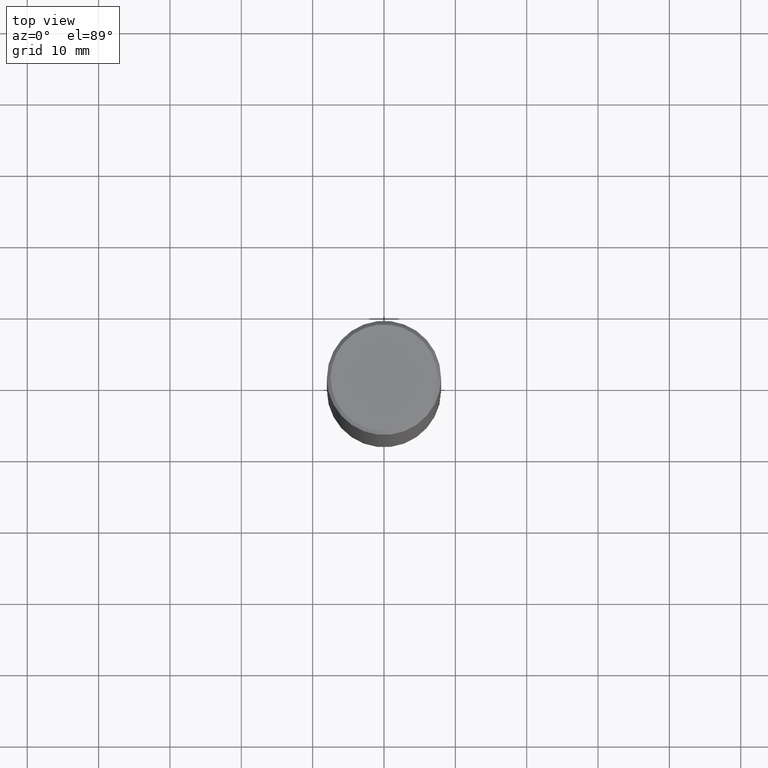
[diagram: clean part render]
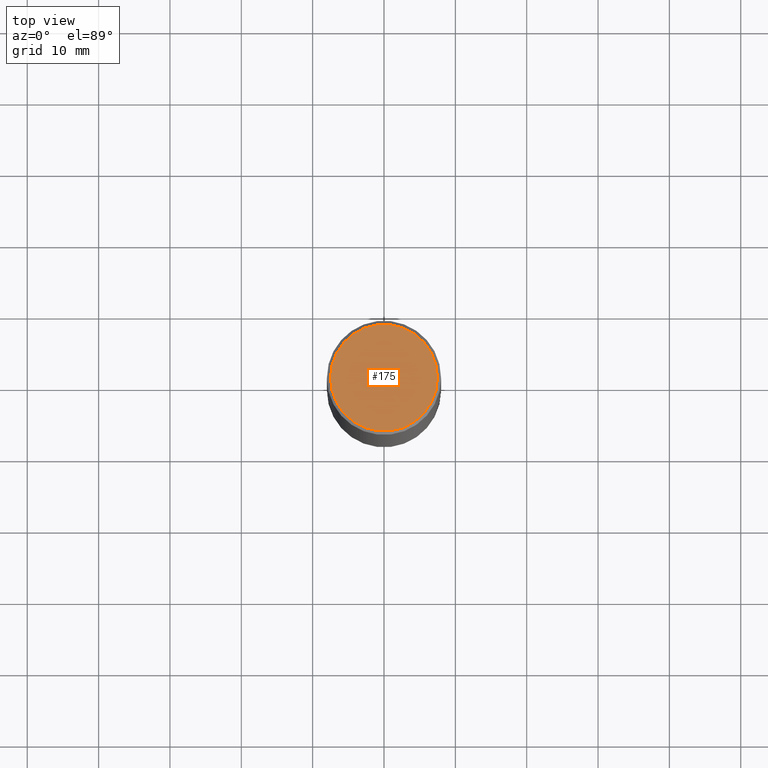
[diagram: same view with one face highlighted and labeled with its STEP entity id]
A machine part, top view. The second image highlights one B-rep face of the part: STEP entity #175.
In plain terms, the highlighted planar face has unit normal (0, -0, -1).
Its self-contained STEP definition (entity closure, byte-faithful):
#33 = DIRECTION ( 'NONE',  ( 1.000000000000000000, -6.982962677686267499E-15, 4.876053491004739391E-29 ) ) ;
#40 = DIRECTION ( 'NONE',  ( -2.445468806185136597E-29, 3.491481338843145583E-15, 1.000000000000000000 ) ) ;
#53 = AXIS2_PLACEMENT_3D ( 'NONE', #131, #155, #33 ) ;
#81 = CARTESIAN_POINT ( 'NONE',  ( -2.087702828670439639E-46, 2.980686340760894400E-32, 8.537024980200822558E-18 ) ) ;
#85 = DIRECTION ( 'NONE',  ( -1.000000000000000000, 6.982962677686265922E-15, -4.876176775795935793E-29 ) ) ;
#118 = EDGE_LOOP ( 'NONE', ( #340, #246 ) ) ;
#122 = DIRECTION ( 'NONE',  ( 2.438088387897960049E-29, -3.491481338843145188E-15, -1.000000000000000000 ) ) ;
#131 = CARTESIAN_POINT ( 'NONE',  ( -2.087702828670439639E-46, 2.980686340760894400E-32, 8.537024980200822558E-18 ) ) ;
#149 = VERTEX_POINT ( 'NONE', #171 ) ;
#155 = DIRECTION ( 'NONE',  ( -2.445468806185136597E-29, 3.491481338843145583E-15, 1.000000000000000000 ) ) ;
#163 = CIRCLE ( 'NONE', #195, 0.2949499999999997124 ) ;
#171 = CARTESIAN_POINT ( 'NONE',  ( -0.2949499999999997124, 2.094539655171993740E-15, 8.537024980186296424E-18 ) ) ;
#175 = ADVANCED_FACE ( 'NONE', ( #176 ), #291, .F. ) ;
#176 = FACE_OUTER_BOUND ( 'NONE', #118, .T. ) ;
#195 = AXIS2_PLACEMENT_3D ( 'NONE', #81, #40, #233 ) ;
#208 = EDGE_CURVE ( 'NONE', #301, #149, #163, .T. ) ;
#227 = AXIS2_PLACEMENT_3D ( 'NONE', #255, #122, #85 ) ;
#233 = DIRECTION ( 'NONE',  ( 1.000000000000000000, -6.982962677686267499E-15, 4.876053491004739391E-29 ) ) ;
#246 = ORIENTED_EDGE ( 'NONE', *, *, #208, .T. ) ;
#255 = CARTESIAN_POINT ( 'NONE',  ( 2.059624841783562091E-15, 0.2949499999999997124, -1.025543908401684366E-15 ) ) ;
#258 = CARTESIAN_POINT ( 'NONE',  ( 0.2949499999999997124, -2.127023677808858103E-15, 8.537024980215462707E-18 ) ) ;
#291 = PLANE ( 'NONE',  #227 ) ;
#301 = VERTEX_POINT ( 'NONE', #258 ) ;
#303 = CIRCLE ( 'NONE', #53, 0.2949499999999997124 ) ;
#340 = ORIENTED_EDGE ( 'NONE', *, *, #366, .T. ) ;
#366 = EDGE_CURVE ( 'NONE', #149, #301, #303, .T. ) ;